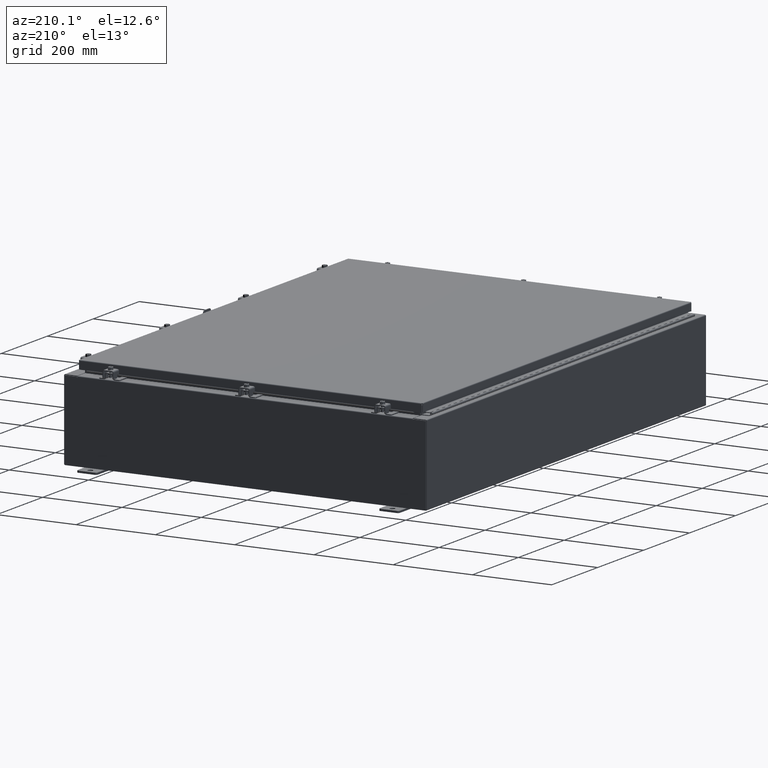
[diagram: clean part render]
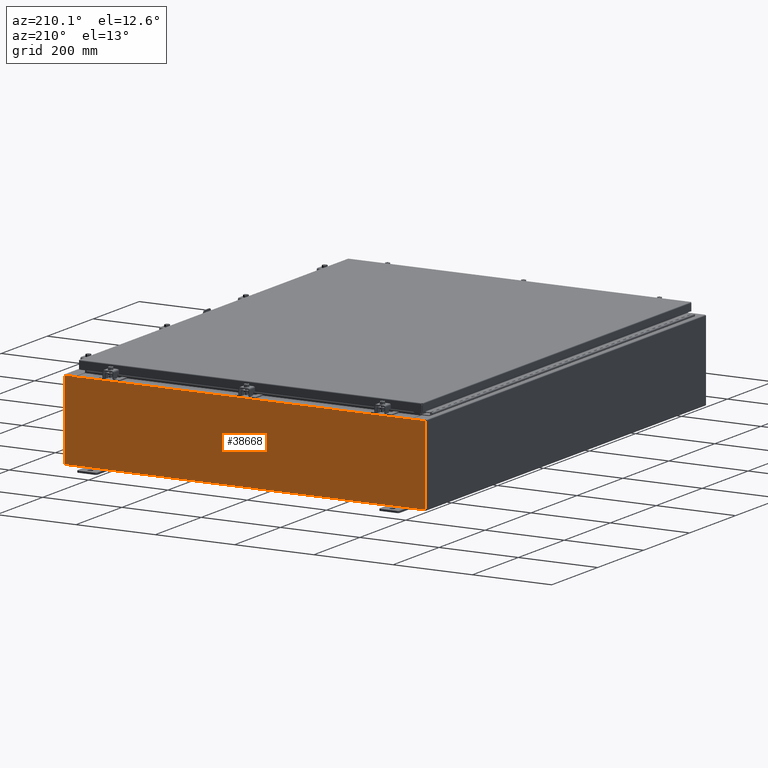
[diagram: same view with one face highlighted and labeled with its STEP entity id]
A machine part, auxiliary view. The second image highlights one B-rep face of the part: STEP entity #38668.
In plain terms, the highlighted planar face has unit normal (0, -1, 0).
Its self-contained STEP definition (entity closure, byte-faithful):
#116 = LINE ( 'NONE', #45749, #44172 ) ;
#1341 = CIRCLE ( 'NONE', #10329, 0.01867499999999949400 ) ;
#2298 = ORIENTED_EDGE ( 'NONE', *, *, #48655, .T. ) ;
#3183 = DIRECTION ( 'NONE',  ( 1.000000000000000000, 0.0000000000000000000, 0.0000000000000000000 ) ) ;
#3274 = DIRECTION ( 'NONE',  ( -0.0000000000000000000, 1.000000000000000000, -0.0000000000000000000 ) ) ;
#3754 = ORIENTED_EDGE ( 'NONE', *, *, #6970, .T. ) ;
#4054 = VECTOR ( 'NONE', #51718, 39.37007874015748100 ) ;
#4268 = EDGE_CURVE ( 'NONE', #23937, #44997, #33631, .T. ) ;
#4440 = VERTEX_POINT ( 'NONE', #13192 ) ;
#4492 = CARTESIAN_POINT ( 'NONE',  ( -17.92529999999999600, 0.0000000000000000000, 3.925300000000000900 ) ) ;
#4649 = CARTESIAN_POINT ( 'NONE',  ( -17.92529999999999600, 0.0000000000000000000, 3.925300000000000900 ) ) ;
#4665 = DIRECTION ( 'NONE',  ( 1.000000000000000000, 0.0000000000000000000, 0.0000000000000000000 ) ) ;
#5367 = LINE ( 'NONE', #4649, #4054 ) ;
#6130 = EDGE_CURVE ( 'NONE', #38952, #44997, #116, .T. ) ;
#6970 = EDGE_CURVE ( 'NONE', #48426, #38004, #5367, .T. ) ;
#7348 = CARTESIAN_POINT ( 'NONE',  ( -17.92529999999999600, 0.0000000000000000000, 3.925300000000000900 ) ) ;
#9080 = ORIENTED_EDGE ( 'NONE', *, *, #40202, .F. ) ;
#10329 = AXIS2_PLACEMENT_3D ( 'NONE', #36550, #10965, #40790 ) ;
#10443 = ORIENTED_EDGE ( 'NONE', *, *, #40011, .T. ) ;
#10910 = VECTOR ( 'NONE', #50584, 39.37007874015748100 ) ;
#10965 = DIRECTION ( 'NONE',  ( -0.0000000000000000000, 1.000000000000000000, -0.0000000000000000000 ) ) ;
#12763 = EDGE_CURVE ( 'NONE', #38952, #21276, #39229, .T. ) ;
#13192 = CARTESIAN_POINT ( 'NONE',  ( 16.67455000000001100, 0.0000000000000000000, 3.925300000000000900 ) ) ;
#13455 = CARTESIAN_POINT ( 'NONE',  ( -17.92529999999999600, 0.0000000000000000000, 3.925300000000000900 ) ) ;
#14479 = LINE ( 'NONE', #18462, #37193 ) ;
#14868 = DIRECTION ( 'NONE',  ( 0.0000000000000000000, 0.0000000000000000000, -1.000000000000000000 ) ) ;
#15188 = EDGE_CURVE ( 'NONE', #15942, #53054, #26301, .T. ) ;
#15656 = DIRECTION ( 'NONE',  ( 0.0000000000000000000, 0.0000000000000000000, 1.000000000000000000 ) ) ;
#15942 = VERTEX_POINT ( 'NONE', #28108 ) ;
#17040 = CARTESIAN_POINT ( 'NONE',  ( 16.67455000000000700, 0.0000000000000000000, 3.874949999999999700 ) ) ;
#17148 = CARTESIAN_POINT ( 'NONE',  ( 0.0000000000000000000, 0.0000000000000000000, 0.0000000000000000000 ) ) ;
#17309 = FACE_OUTER_BOUND ( 'NONE', #23582, .T. ) ;
#17743 = DIRECTION ( 'NONE',  ( -0.0000000000000000000, -0.0000000000000000000, 1.000000000000000000 ) ) ;
#18462 = CARTESIAN_POINT ( 'NONE',  ( 16.67454999999967000, 0.0000000000000000000, -1.447333067043326700E-012 ) ) ;
#18981 = ORIENTED_EDGE ( 'NONE', *, *, #31181, .F. ) ;
#19004 = CARTESIAN_POINT ( 'NONE',  ( -16.63719999999999600, 0.0000000000000000000, 3.912300000000000600 ) ) ;
#19228 = AXIS2_PLACEMENT_3D ( 'NONE', #28842, #3274, #33123 ) ;
#19323 = EDGE_CURVE ( 'NONE', #34795, #23937, #26699, .T. ) ;
#20608 = CARTESIAN_POINT ( 'NONE',  ( 16.63720000000000700, 0.0000000000000000000, 3.874949999999999700 ) ) ;
#20703 = CARTESIAN_POINT ( 'NONE',  ( 16.63720000000000700, 0.0000000000000000000, 0.0000000000000000000 ) ) ;
#21182 = CARTESIAN_POINT ( 'NONE',  ( -16.67454999999999600, 0.0000000000000000000, 3.925300000000000900 ) ) ;
#21276 = VERTEX_POINT ( 'NONE', #22604 ) ;
#21475 = DIRECTION ( 'NONE',  ( 0.0000000000000000000, -1.000000000000000000, 0.0000000000000000000 ) ) ;
#21505 = CARTESIAN_POINT ( 'NONE',  ( 17.92530000000000400, 0.0000000000000000000, 3.925300000000000900 ) ) ;
#22604 = CARTESIAN_POINT ( 'NONE',  ( -16.63719999999999600, 0.0000000000000000000, 3.874949999999999700 ) ) ;
#22716 = LINE ( 'NONE', #41194, #44046 ) ;
#22951 = ORIENTED_EDGE ( 'NONE', *, *, #15188, .T. ) ;
#23232 = CARTESIAN_POINT ( 'NONE',  ( -17.92529999999999600, 0.0000000000000000000, -3.925299999999999100 ) ) ;
#23488 = CARTESIAN_POINT ( 'NONE',  ( -16.63719999999999600, 0.0000000000000000000, 0.0000000000000000000 ) ) ;
#23582 = EDGE_LOOP ( 'NONE', ( #33055, #18981, #52407, #40643, #33741, #44831, #9080, #26790, #10443, #22951, #2298, #3754 ) ) ;
#23937 = VERTEX_POINT ( 'NONE', #20608 ) ;
#26301 = LINE ( 'NONE', #26671, #46345 ) ;
#26671 = CARTESIAN_POINT ( 'NONE',  ( -17.92529999999999600, 0.0000000000000000000, -3.925299999999999100 ) ) ;
#26699 = CIRCLE ( 'NONE', #19228, 0.01867499999999949400 ) ;
#26790 = ORIENTED_EDGE ( 'NONE', *, *, #35450, .T. ) ;
#28108 = CARTESIAN_POINT ( 'NONE',  ( 17.92530000000000400, 0.0000000000000000000, -3.925299999999999100 ) ) ;
#28842 = CARTESIAN_POINT ( 'NONE',  ( 16.65587500000000500, 0.0000000000000000000, 3.874949999999999700 ) ) ;
#30960 = DIRECTION ( 'NONE',  ( -1.000000000000000000, -0.0000000000000000000, -0.0000000000000000000 ) ) ;
#31181 = EDGE_CURVE ( 'NONE', #21276, #50523, #1341, .T. ) ;
#31457 = LINE ( 'NONE', #13455, #40106 ) ;
#33055 = ORIENTED_EDGE ( 'NONE', *, *, #42190, .F. ) ;
#33123 = DIRECTION ( 'NONE',  ( 0.0000000000000000000, 0.0000000000000000000, -1.000000000000000000 ) ) ;
#33617 = VERTEX_POINT ( 'NONE', #39115 ) ;
#33631 = LINE ( 'NONE', #20703, #10910 ) ;
#33741 = ORIENTED_EDGE ( 'NONE', *, *, #4268, .F. ) ;
#34289 = LINE ( 'NONE', #4492, #45677 ) ;
#34795 = VERTEX_POINT ( 'NONE', #17040 ) ;
#35450 = EDGE_CURVE ( 'NONE', #4440, #33617, #34289, .T. ) ;
#36550 = CARTESIAN_POINT ( 'NONE',  ( -16.65587499999999800, 0.0000000000000000000, 3.874949999999999700 ) ) ;
#37193 = VECTOR ( 'NONE', #48166, 39.37007874015748100 ) ;
#38004 = VERTEX_POINT ( 'NONE', #21182 ) ;
#38668 = ADVANCED_FACE ( 'NONE', ( #17309 ), #42701, .F. ) ;
#38952 = VERTEX_POINT ( 'NONE', #19004 ) ;
#39115 = CARTESIAN_POINT ( 'NONE',  ( 17.92530000000000400, 0.0000000000000000000, 3.925300000000000900 ) ) ;
#39229 = LINE ( 'NONE', #23488, #47956 ) ;
#40011 = EDGE_CURVE ( 'NONE', #33617, #15942, #43866, .T. ) ;
#40106 = VECTOR ( 'NONE', #17743, 39.37007874015748100 ) ;
#40202 = EDGE_CURVE ( 'NONE', #4440, #34795, #14479, .T. ) ;
#40277 = AXIS2_PLACEMENT_3D ( 'NONE', #17148, #21475, #51359 ) ;
#40643 = ORIENTED_EDGE ( 'NONE', *, *, #6130, .T. ) ;
#40790 = DIRECTION ( 'NONE',  ( 0.0000000000000000000, 0.0000000000000000000, -1.000000000000000000 ) ) ;
#41194 = CARTESIAN_POINT ( 'NONE',  ( -16.67454999999999600, 0.0000000000000000000, 0.0000000000000000000 ) ) ;
#42190 = EDGE_CURVE ( 'NONE', #50523, #38004, #22716, .T. ) ;
#42701 = PLANE ( 'NONE',  #40277 ) ;
#43866 = LINE ( 'NONE', #21505, #55279 ) ;
#43924 = CARTESIAN_POINT ( 'NONE',  ( 16.63720000000000700, 0.0000000000000000000, 3.912300000000000600 ) ) ;
#44046 = VECTOR ( 'NONE', #15656, 39.37007874015748100 ) ;
#44172 = VECTOR ( 'NONE', #3183, 39.37007874015748100 ) ;
#44831 = ORIENTED_EDGE ( 'NONE', *, *, #19323, .F. ) ;
#44997 = VERTEX_POINT ( 'NONE', #43924 ) ;
#45677 = VECTOR ( 'NONE', #4665, 39.37007874015748100 ) ;
#45749 = CARTESIAN_POINT ( 'NONE',  ( -16.63719999999999600, 0.0000000000000000000, 3.912300000000000600 ) ) ;
#46345 = VECTOR ( 'NONE', #30960, 39.37007874015748100 ) ;
#47956 = VECTOR ( 'NONE', #14868, 39.37007874015748100 ) ;
#48166 = DIRECTION ( 'NONE',  ( -8.681145560800009800E-014, 0.0000000000000000000, -1.000000000000000000 ) ) ;
#48426 = VERTEX_POINT ( 'NONE', #7348 ) ;
#48655 = EDGE_CURVE ( 'NONE', #53054, #48426, #31457, .T. ) ;
#50048 = CARTESIAN_POINT ( 'NONE',  ( -16.67454999999999600, 0.0000000000000000000, 3.874949999999999700 ) ) ;
#50523 = VERTEX_POINT ( 'NONE', #50048 ) ;
#50584 = DIRECTION ( 'NONE',  ( 0.0000000000000000000, 0.0000000000000000000, 1.000000000000000000 ) ) ;
#51359 = DIRECTION ( 'NONE',  ( 0.0000000000000000000, -0.0000000000000000000, -1.000000000000000000 ) ) ;
#51390 = DIRECTION ( 'NONE',  ( 0.0000000000000000000, 0.0000000000000000000, -1.000000000000000000 ) ) ;
#51718 = DIRECTION ( 'NONE',  ( 1.000000000000000000, 0.0000000000000000000, 0.0000000000000000000 ) ) ;
#52407 = ORIENTED_EDGE ( 'NONE', *, *, #12763, .F. ) ;
#53054 = VERTEX_POINT ( 'NONE', #23232 ) ;
#55279 = VECTOR ( 'NONE', #51390, 39.37007874015748100 ) ;